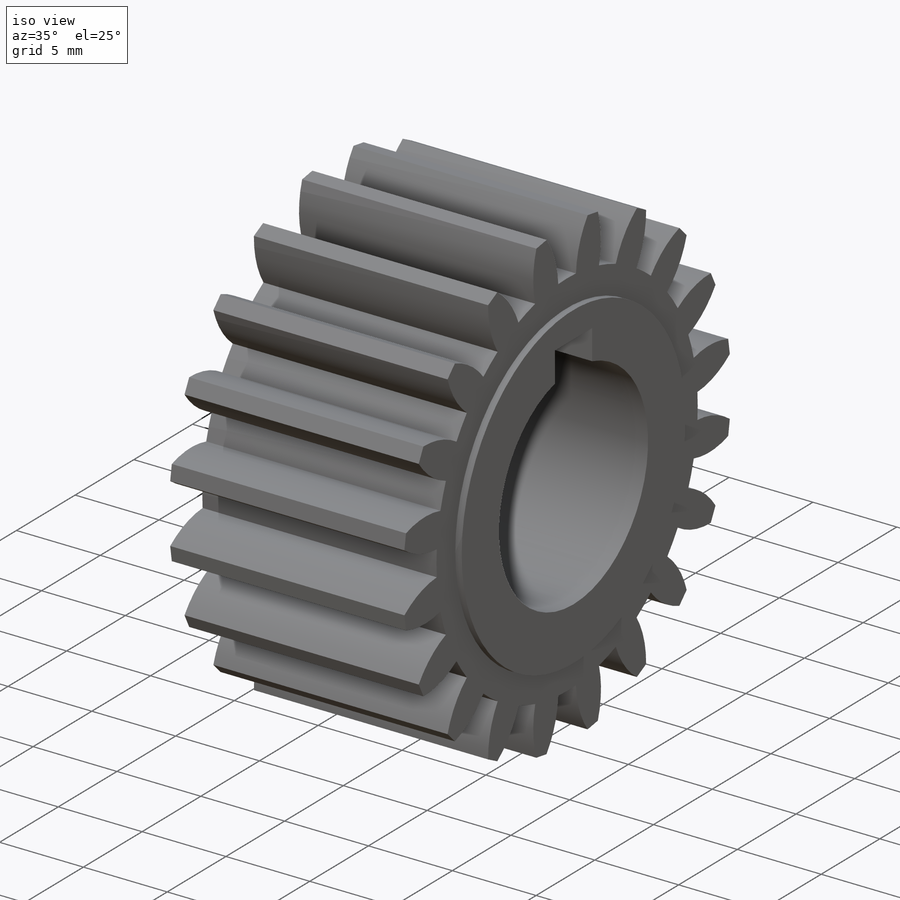
[diagram: iso view]
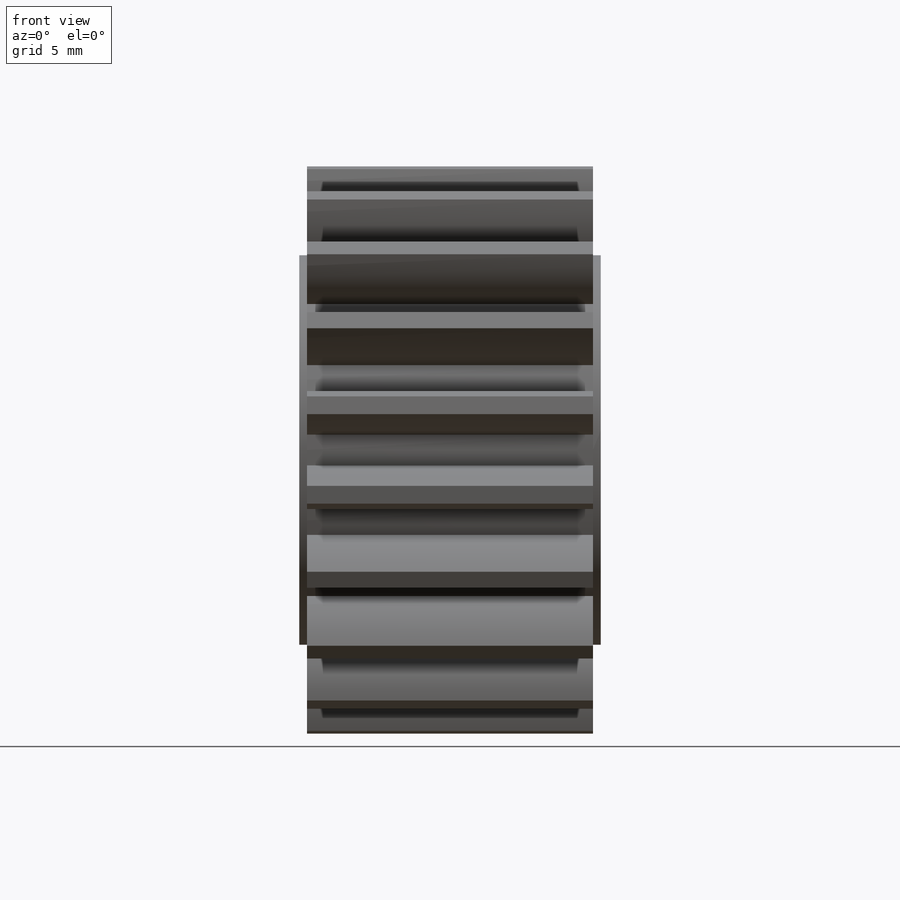
[diagram: front view]
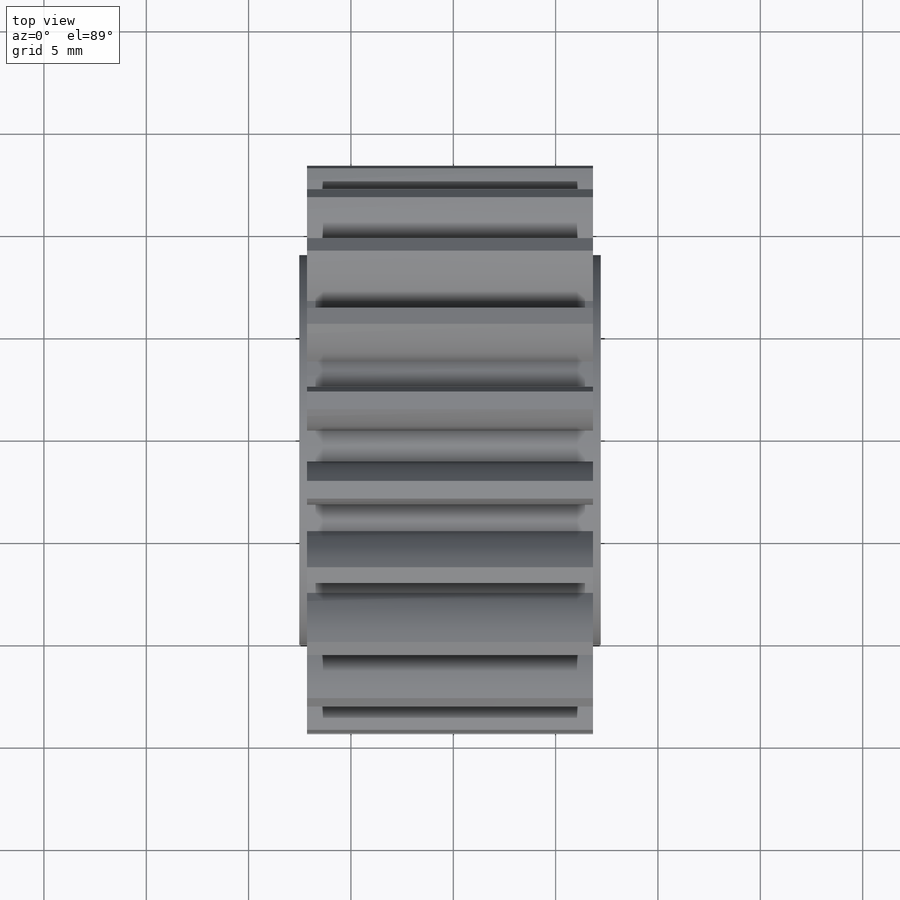
[diagram: top view]
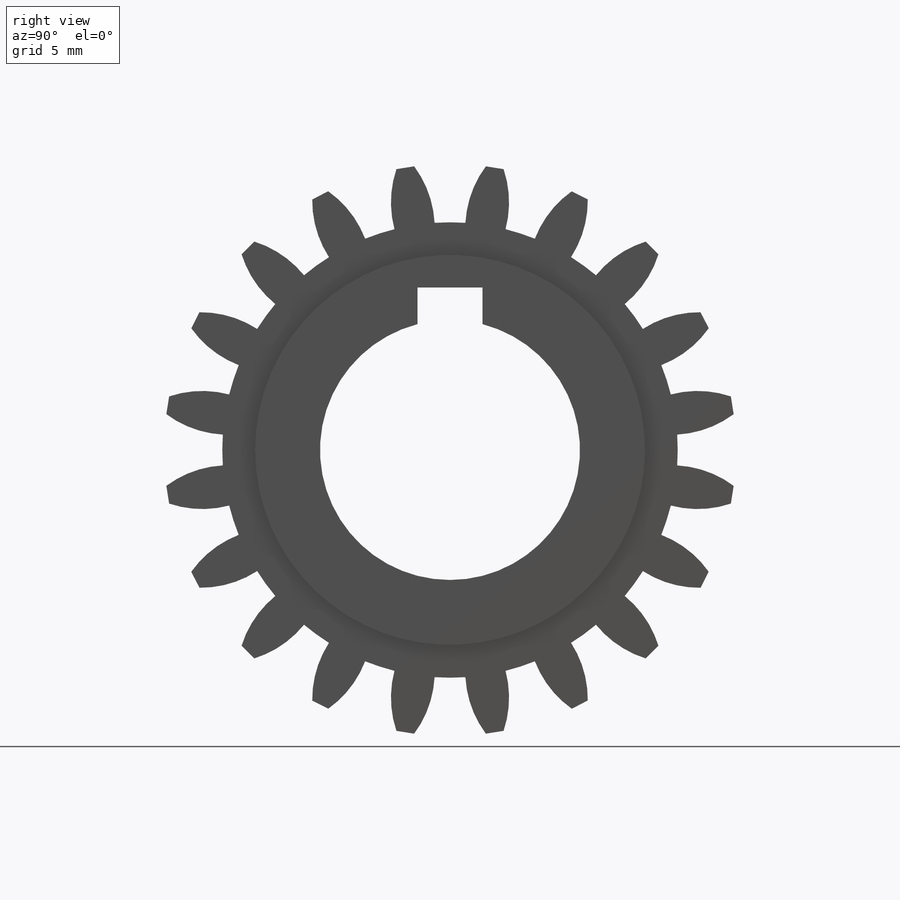
[diagram: right view]
SOLIDWORKS PART (.sldprt)
format: sldprt  version: not decoded by parser v0  size: 312,320 bytes
history: native  units: mm
features: sketch x3, extrude x2, material x1, cut_extrude x1 + 1 further entry (+17 scaffold rows collapsed; 3 parser-record rows omitted)
feature tree (28):
  scaffold x17  (default folders/planes/origin — collapsed)
  material  "AISI 4130 Steel, annealed at 865C"
  "spur gear_ai"
  parser-record x3  (decoder bookkeeping rows leaked as tree rows — omitted from the tree; the rows remain in map.json)
  sketch  "Sketch1"  dims[D1=3.175mm]
  cut_extrude  "Cut-Extrude1"  [1 undecoded]
  sketch  "Sketch2"  dims[D1=19.05mm]
  extrude  "Boss-Extrude1"  Depth=0.381mm
  sketch  "Sketch3"  dims[D1=19.05mm]
  extrude  "Boss-Extrude2"  Depth=0.381mm
decode coverage: 5 of 6 modeling features carry decoded parameters; 1 rows unclassified (native names shown)
note: 1 parameter value undecoded
note: suppression state not decoded; provenance and decode notes live in map.json
